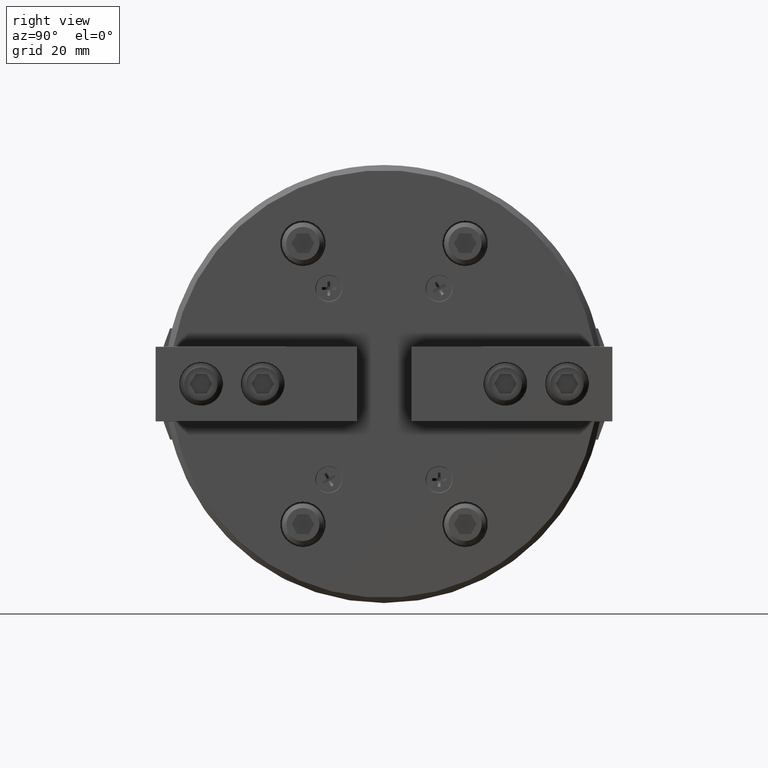
[diagram: clean part render]
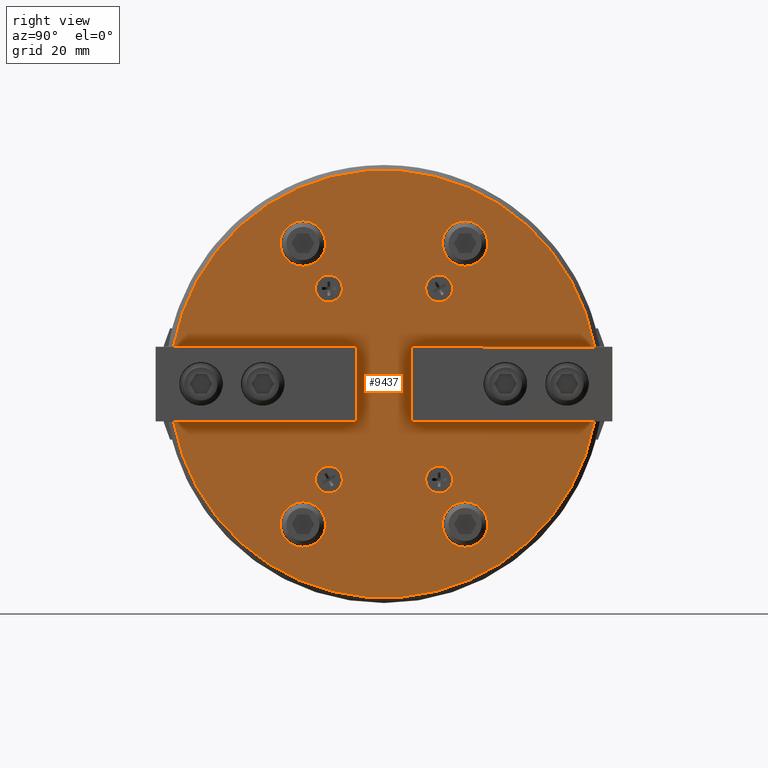
[diagram: same view with one face highlighted and labeled with its STEP entity id]
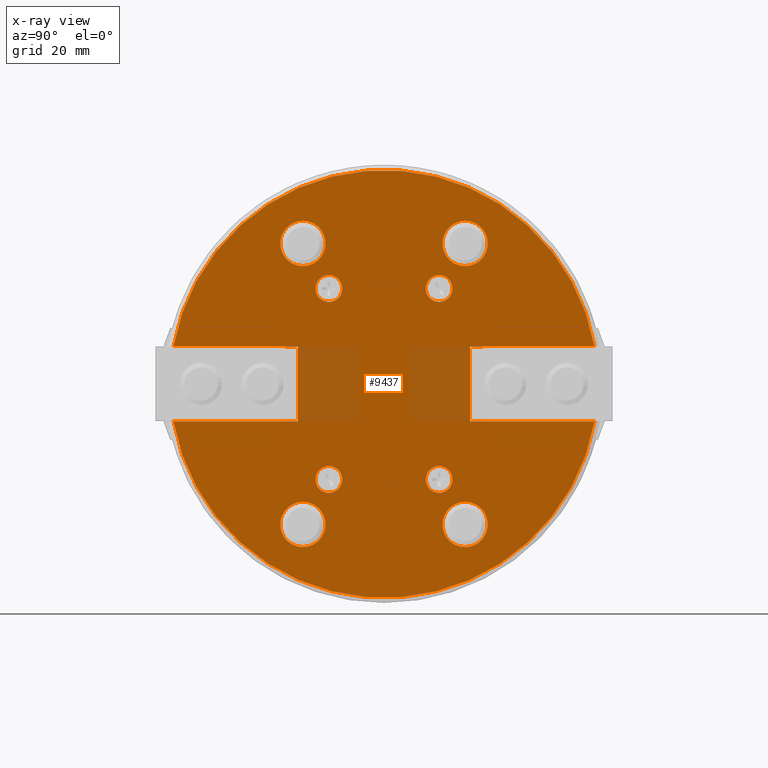
[diagram: x-ray of the same camera — body ghosted, the highlighted face saturated]
A machine part, right view. The second image highlights one B-rep face of the part: STEP entity #9437.
The next image is the same camera in x-ray: the body ghosted, the highlighted face saturated — about 8% of this face is hidden behind the body in this view.
In plain terms, the highlighted planar face has unit normal (1, 0, 0).
Its self-contained STEP definition (entity closure, byte-faithful):
#330=CIRCLE('',#10113,7.);
#331=CIRCLE('',#10114,7.00000000000001);
#332=CIRCLE('',#10115,4.15);
#333=CIRCLE('',#10116,4.15);
#334=CIRCLE('',#10117,4.15);
#335=CIRCLE('',#10118,4.15);
#336=CIRCLE('',#10119,65.9);
#337=CIRCLE('',#10120,65.9);
#338=CIRCLE('',#10121,7.);
#339=CIRCLE('',#10122,7.00000000000001);
#1262=ORIENTED_EDGE('',*,*,#3641,.T.);
#1263=ORIENTED_EDGE('',*,*,#3642,.F.);
#1264=ORIENTED_EDGE('',*,*,#3643,.F.);
#1265=ORIENTED_EDGE('',*,*,#3644,.T.);
#1266=ORIENTED_EDGE('',*,*,#3645,.T.);
#1267=ORIENTED_EDGE('',*,*,#3646,.F.);
#1268=ORIENTED_EDGE('',*,*,#3628,.F.);
#1269=ORIENTED_EDGE('',*,*,#3647,.T.);
#1270=ORIENTED_EDGE('',*,*,#3648,.T.);
#1271=ORIENTED_EDGE('',*,*,#3649,.T.);
#1272=ORIENTED_EDGE('',*,*,#3650,.F.);
#1273=ORIENTED_EDGE('',*,*,#3651,.F.);
#1274=ORIENTED_EDGE('',*,*,#3652,.T.);
#1275=ORIENTED_EDGE('',*,*,#3653,.T.);
#1276=ORIENTED_EDGE('',*,*,#3654,.T.);
#1277=ORIENTED_EDGE('',*,*,#3655,.F.);
#1278=ORIENTED_EDGE('',*,*,#3598,.F.);
#1279=ORIENTED_EDGE('',*,*,#3504,.F.);
#1280=ORIENTED_EDGE('',*,*,#3597,.F.);
#1281=ORIENTED_EDGE('',*,*,#3640,.T.);
#1282=ORIENTED_EDGE('',*,*,#3636,.T.);
#1283=ORIENTED_EDGE('',*,*,#3579,.F.);
#1284=ORIENTED_EDGE('',*,*,#3656,.F.);
#1285=ORIENTED_EDGE('',*,*,#3657,.T.);
#3504=EDGE_CURVE('',#4787,#4788,#5698,.T.);
#3579=EDGE_CURVE('',#4835,#4836,#5747,.T.);
#3597=EDGE_CURVE('',#4844,#4787,#5763,.T.);
#3598=EDGE_CURVE('',#4788,#4845,#5764,.T.);
#3628=EDGE_CURVE('',#4865,#4835,#5786,.T.);
#3636=EDGE_CURVE('',#4866,#4836,#5791,.T.);
#3640=EDGE_CURVE('',#4844,#4866,#5793,.T.);
#3641=EDGE_CURVE('',#4869,#4869,#330,.T.);
#3642=EDGE_CURVE('',#4870,#4870,#331,.T.);
#3643=EDGE_CURVE('',#4871,#4871,#332,.T.);
#3644=EDGE_CURVE('',#4872,#4872,#333,.T.);
#3645=EDGE_CURVE('',#4873,#4873,#334,.T.);
#3646=EDGE_CURVE('',#4874,#4874,#335,.T.);
#3647=EDGE_CURVE('',#4865,#4875,#336,.T.);
#3648=EDGE_CURVE('',#4875,#4876,#5794,.T.);
#3649=EDGE_CURVE('',#4876,#4877,#5795,.T.);
#3650=EDGE_CURVE('',#4878,#4877,#5796,.T.);
#3651=EDGE_CURVE('',#4879,#4878,#5797,.T.);
#3652=EDGE_CURVE('',#4879,#4880,#5798,.T.);
#3653=EDGE_CURVE('',#4880,#4881,#5799,.T.);
#3654=EDGE_CURVE('',#4881,#4882,#5800,.T.);
#3655=EDGE_CURVE('',#4845,#4882,#337,.T.);
#3656=EDGE_CURVE('',#4883,#4883,#338,.T.);
#3657=EDGE_CURVE('',#4884,#4884,#339,.T.);
#4787=VERTEX_POINT('',#14115);
#4788=VERTEX_POINT('',#14117);
#4835=VERTEX_POINT('',#14273);
#4836=VERTEX_POINT('',#14275);
#4844=VERTEX_POINT('',#14309);
#4845=VERTEX_POINT('',#14313);
#4865=VERTEX_POINT('',#14372);
#4866=VERTEX_POINT('',#14395);
#4869=VERTEX_POINT('',#14406);
#4870=VERTEX_POINT('',#14408);
#4871=VERTEX_POINT('',#14410);
#4872=VERTEX_POINT('',#14412);
#4873=VERTEX_POINT('',#14414);
#4874=VERTEX_POINT('',#14416);
#4875=VERTEX_POINT('',#14418);
#4876=VERTEX_POINT('',#14420);
#4877=VERTEX_POINT('',#14422);
#4878=VERTEX_POINT('',#14424);
#4879=VERTEX_POINT('',#14426);
#4880=VERTEX_POINT('',#14428);
#4881=VERTEX_POINT('',#14430);
#4882=VERTEX_POINT('',#14432);
#4883=VERTEX_POINT('',#14435);
#4884=VERTEX_POINT('',#14437);
#5698=LINE('',#14116,#6644);
#5747=LINE('',#14274,#6693);
#5763=LINE('',#14310,#6709);
#5764=LINE('',#14312,#6710);
#5786=LINE('',#14373,#6732);
#5791=LINE('',#14394,#6737);
#5793=LINE('',#14403,#6739);
#5794=LINE('',#14419,#6740);
#5795=LINE('',#14421,#6741);
#5796=LINE('',#14423,#6742);
#5797=LINE('',#14425,#6743);
#5798=LINE('',#14427,#6744);
#5799=LINE('',#14429,#6745);
#5800=LINE('',#14431,#6746);
#6644=VECTOR('',#11215,1000.);
#6693=VECTOR('',#11344,1000.);
#6709=VECTOR('',#11382,1000.);
#6710=VECTOR('',#11385,1000.);
#6732=VECTOR('',#11443,1000.);
#6737=VECTOR('',#11480,1000.);
#6739=VECTOR('',#11490,1000.);
#6740=VECTOR('',#11507,1000.);
#6741=VECTOR('',#11508,1000.);
#6742=VECTOR('',#11509,1000.);
#6743=VECTOR('',#11510,1000.);
#6744=VECTOR('',#11511,1000.);
#6745=VECTOR('',#11512,1000.);
#6746=VECTOR('',#11513,1000.);
#7544=EDGE_LOOP('',(#1262));
#7545=EDGE_LOOP('',(#1263));
#7546=EDGE_LOOP('',(#1264));
#7547=EDGE_LOOP('',(#1265));
#7548=EDGE_LOOP('',(#1266));
#7549=EDGE_LOOP('',(#1267));
#7550=EDGE_LOOP('',(#1268,#1269,#1270,#1271,#1272,#1273,#1274,#1275,#1276,
#1277,#1278,#1279,#1280,#1281,#1282,#1283));
#7551=EDGE_LOOP('',(#1284));
#7552=EDGE_LOOP('',(#1285));
#8292=FACE_BOUND('',#7544,.T.);
#8293=FACE_BOUND('',#7545,.T.);
#8294=FACE_BOUND('',#7546,.T.);
#8295=FACE_BOUND('',#7547,.T.);
#8296=FACE_BOUND('',#7548,.T.);
#8297=FACE_BOUND('',#7549,.T.);
#8298=FACE_BOUND('',#7550,.T.);
#8299=FACE_BOUND('',#7551,.T.);
#8300=FACE_BOUND('',#7552,.T.);
#9008=PLANE('',#10112);
#9437=ADVANCED_FACE('',(#8292,#8293,#8294,#8295,#8296,#8297,#8298,#8299,
#8300),#9008,.T.);
#10112=AXIS2_PLACEMENT_3D('',#14404,#11491,#11492);
#10113=AXIS2_PLACEMENT_3D('',#14405,#11493,#11494);
#10114=AXIS2_PLACEMENT_3D('',#14407,#11495,#11496);
#10115=AXIS2_PLACEMENT_3D('',#14409,#11497,#11498);
#10116=AXIS2_PLACEMENT_3D('',#14411,#11499,#11500);
#10117=AXIS2_PLACEMENT_3D('',#14413,#11501,#11502);
#10118=AXIS2_PLACEMENT_3D('',#14415,#11503,#11504);
#10119=AXIS2_PLACEMENT_3D('',#14417,#11505,#11506);
#10120=AXIS2_PLACEMENT_3D('',#14433,#11514,#11515);
#10121=AXIS2_PLACEMENT_3D('',#14434,#11516,#11517);
#10122=AXIS2_PLACEMENT_3D('',#14436,#11518,#11519);
#11215=DIRECTION('',(0.,-6.98296267768627E-15,1.));
#11344=DIRECTION('',(0.,-6.98296267768627E-15,1.));
#11382=DIRECTION('',(0.,-1.,-6.98296267768627E-15));
#11385=DIRECTION('',(0.,-1.,-6.98296267768627E-15));
#11443=DIRECTION('',(0.,1.,6.98296267768627E-15));
#11480=DIRECTION('',(0.,-1.,6.98296267768627E-15));
#11490=DIRECTION('',(0.,-6.98296267768627E-15,-1.));
#11491=DIRECTION('',(1.,0.,0.));
#11492=DIRECTION('',(0.,0.,-1.));
#11493=DIRECTION('',(-1.,0.,0.));
#11494=DIRECTION('',(0.,1.38777878078145E-14,1.));
#11495=DIRECTION('',(1.,0.,0.));
#11496=DIRECTION('',(0.,6.93889390390722E-15,1.));
#11497=DIRECTION('',(1.,0.,0.));
#11498=DIRECTION('',(0.,-6.68809050979009E-15,1.));
#11499=DIRECTION('',(-1.,0.,0.));
#11500=DIRECTION('',(0.,0.,1.));
#11501=DIRECTION('',(-1.,0.,0.));
#11502=DIRECTION('',(0.,-6.68809050979009E-15,-1.));
#11503=DIRECTION('',(1.,0.,0.));
#11504=DIRECTION('',(0.,0.,-1.));
#11505=DIRECTION('',(1.,0.,0.));
#11506=DIRECTION('',(0.,0.,-1.));
#11507=DIRECTION('',(0.,-1.,0.));
#11508=DIRECTION('',(0.,0.,1.));
#11509=DIRECTION('',(0.,1.,0.));
#11510=DIRECTION('',(0.,0.,-1.));
#11511=DIRECTION('',(0.,1.,0.));
#11512=DIRECTION('',(0.,0.,1.));
#11513=DIRECTION('',(0.,1.,0.));
#11514=DIRECTION('',(-1.,0.,0.));
#11515=DIRECTION('',(0.,1.39659253553725E-14,1.));
#11516=DIRECTION('',(1.,0.,0.));
#11517=DIRECTION('',(0.,0.,-1.));
#11518=DIRECTION('',(-1.,0.,0.));
#11519=DIRECTION('',(0.,-6.93889390390722E-15,-1.));
#14115=CARTESIAN_POINT('',(0.,-30.4000000000001,11.4999999999998));
#14116=CARTESIAN_POINT('',(0.,-30.4000000000001,17.1509999999998));
#14117=CARTESIAN_POINT('',(0.,-30.4000000000001,11.5999999999998));
#14273=CARTESIAN_POINT('',(0.,-30.3999999999999,-11.6000000000002));
#14274=CARTESIAN_POINT('',(0.,-30.3999999999999,-17.1510000000002));
#14275=CARTESIAN_POINT('',(0.,-30.3999999999999,-11.4999999999998));
#14309=CARTESIAN_POINT('',(0.,-26.5000000000001,11.4999999999998));
#14310=CARTESIAN_POINT('',(0.,-39.9822005703126,11.4999999999997));
#14312=CARTESIAN_POINT('',(0.,-67.9000000000001,11.5999999999995));
#14313=CARTESIAN_POINT('',(-4.82420673452052E-16,-64.8710258898379,11.5999999999995));
#14372=CARTESIAN_POINT('',(0.,-64.8710258898377,-11.6000000000005));
#14373=CARTESIAN_POINT('',(0.,-67.8999999999999,-11.6000000000005));
#14394=CARTESIAN_POINT('',(0.,-39.9822005703126,-11.4999999999997));
#14395=CARTESIAN_POINT('',(0.,-26.5000000000001,-11.4999999999998));
#14403=CARTESIAN_POINT('',(0.,-26.5000000000001,-11.4999999999998));
#14404=CARTESIAN_POINT('',(0.,-1.36167772214882E-13,-39.));
#14405=CARTESIAN_POINT('',(-3.06161699786838E-15,25.0000000000008,43.3012701892215));
#14406=CARTESIAN_POINT('',(-3.06161699786838E-15,25.0000000000009,50.3012701892215));
#14407=CARTESIAN_POINT('',(-3.06161699786838E-15,-24.9999999999999,43.301270189222));
#14408=CARTESIAN_POINT('',(-3.06161699786838E-15,-24.9999999999999,50.301270189222));
#14409=CARTESIAN_POINT('',(0.,-17.0000000000001,29.4448637286708));
#14410=CARTESIAN_POINT('',(0.,-17.0000000000002,33.5948637286708));
#14411=CARTESIAN_POINT('',(0.,16.9999999999999,29.444863728671));
#14412=CARTESIAN_POINT('',(0.,16.9999999999999,33.594863728671));
#14413=CARTESIAN_POINT('',(0.,-17.0000000000001,-29.4448637286708));
#14414=CARTESIAN_POINT('',(0.,-17.0000000000002,-33.5948637286708));
#14415=CARTESIAN_POINT('',(0.,16.9999999999999,-29.444863728671));
#14416=CARTESIAN_POINT('',(0.,16.9999999999999,-33.594863728671));
#14417=CARTESIAN_POINT('',(0.,0.,0.));
#14418=CARTESIAN_POINT('',(0.,64.8710258898378,-11.6));
#14419=CARTESIAN_POINT('',(0.,-1.36167772214882E-13,-11.6));
#14420=CARTESIAN_POINT('',(0.,30.4,-11.6));
#14421=CARTESIAN_POINT('',(0.,30.4,0.));
#14422=CARTESIAN_POINT('',(0.,30.4,-11.5));
#14423=CARTESIAN_POINT('',(0.,39.9822005703125,-11.5));
#14424=CARTESIAN_POINT('',(0.,26.5,-11.5));
#14425=CARTESIAN_POINT('',(0.,26.5,-11.5));
#14426=CARTESIAN_POINT('',(0.,26.5,11.5));
#14427=CARTESIAN_POINT('',(0.,39.9822005703125,11.5));
#14428=CARTESIAN_POINT('',(0.,30.4,11.5));
#14429=CARTESIAN_POINT('',(0.,30.4,0.));
#14430=CARTESIAN_POINT('',(0.,30.4,11.6));
#14431=CARTESIAN_POINT('',(0.,4.08503316644647E-13,11.6));
#14432=CARTESIAN_POINT('',(0.,64.8710258898378,11.6));
#14433=CARTESIAN_POINT('',(0.,0.,0.));
#14434=CARTESIAN_POINT('',(-3.06161699786838E-15,25.0000000000002,-43.3012701892218));
#14435=CARTESIAN_POINT('',(-3.06161699786838E-15,25.0000000000002,-50.3012701892218));
#14436=CARTESIAN_POINT('',(-3.06161699786838E-15,-25.0000000000005,-43.3012701892216));
#14437=CARTESIAN_POINT('',(-3.06161699786838E-15,-25.0000000000006,-50.3012701892216));